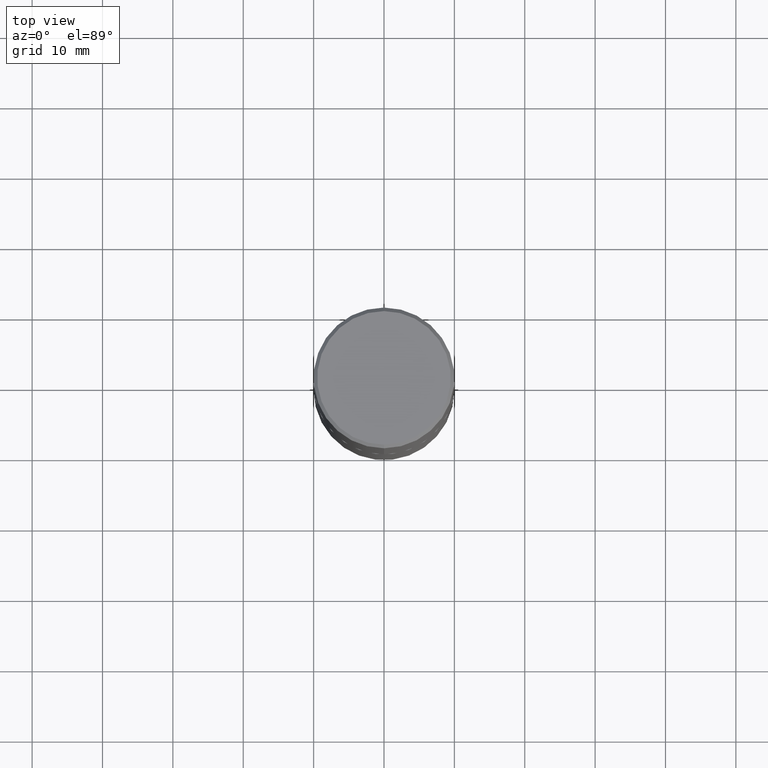
[diagram: clean part render]
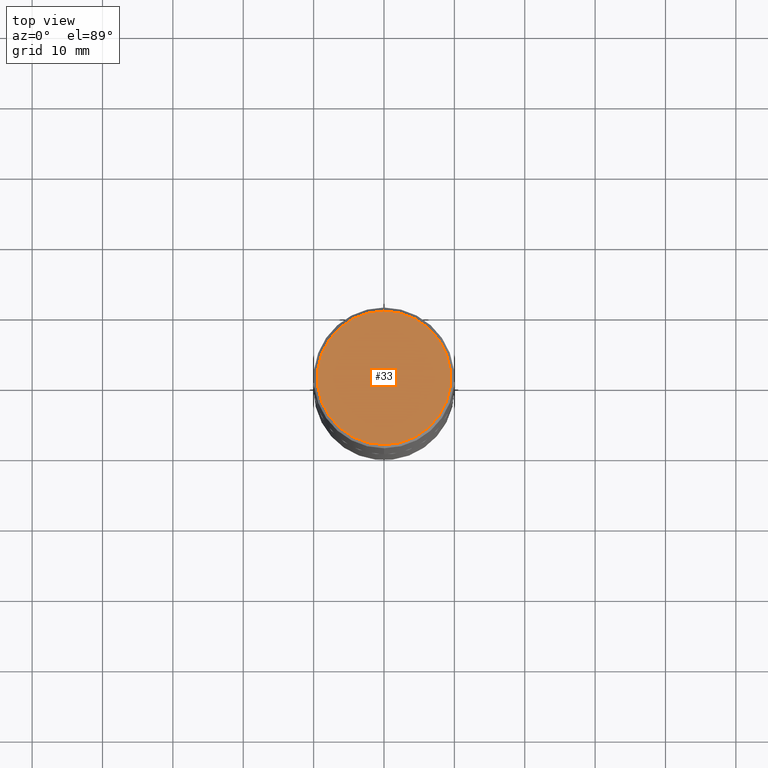
[diagram: same view with one face highlighted and labeled with its STEP entity id]
A machine part, top view. The second image highlights one B-rep face of the part: STEP entity #33.
In plain terms, the highlighted planar face has unit normal (0, -0, -1).
Its self-contained STEP definition (entity closure, byte-faithful):
#2 = AXIS2_PLACEMENT_3D ( 'NONE', #82, #15, #71 ) ;
#7 = DIRECTION ( 'NONE',  ( 2.447902336346030930E-29, -3.487996385144809360E-15, -1.000000000000000000 ) ) ;
#15 = DIRECTION ( 'NONE',  ( -2.447902336346030930E-29, 3.487996385144809755E-15, 1.000000000000000000 ) ) ;
#33 = ADVANCED_FACE ( 'NONE', ( #149 ), #262, .F. ) ;
#36 = VERTEX_POINT ( 'NONE', #197 ) ;
#57 = DIRECTION ( 'NONE',  ( -6.982962677686265133E-15, -1.000000000000000000, 3.487996385144809755E-15 ) ) ;
#71 = DIRECTION ( 'NONE',  ( -6.982962677686265133E-15, -1.000000000000000000, 3.487996385144809755E-15 ) ) ;
#76 = ORIENTED_EDGE ( 'NONE', *, *, #244, .T. ) ;
#81 = AXIS2_PLACEMENT_3D ( 'NONE', #327, #7, #103 ) ;
#82 = CARTESIAN_POINT ( 'NONE',  ( -5.506038201652776757E-45, 7.845509626213831500E-31, 2.249288347782537153E-16 ) ) ;
#83 = EDGE_CURVE ( 'NONE', #36, #164, #372, .T. ) ;
#103 = DIRECTION ( 'NONE',  ( 6.982962677686265922E-15, 1.000000000000000000, -3.487996385144809360E-15 ) ) ;
#149 = FACE_OUTER_BOUND ( 'NONE', #350, .T. ) ;
#164 = VERTEX_POINT ( 'NONE', #338 ) ;
#197 = CARTESIAN_POINT ( 'NONE',  ( -2.632373081744936315E-15, -0.3736999999999999211, 1.528393083906868747E-15 ) ) ;
#206 = AXIS2_PLACEMENT_3D ( 'NONE', #392, #309, #57 ) ;
#244 = EDGE_CURVE ( 'NONE', #164, #36, #266, .T. ) ;
#262 = PLANE ( 'NONE',  #81 ) ;
#266 = CIRCLE ( 'NONE', #206, 0.3736999999999999211 ) ;
#309 = DIRECTION ( 'NONE',  ( -2.447902336346030930E-29, 3.487996385144809755E-15, 1.000000000000000000 ) ) ;
#327 = CARTESIAN_POINT ( 'NONE',  ( 2.609533152651356620E-15, 0.3736999999999999211, -1.190999831739488445E-15 ) ) ;
#338 = CARTESIAN_POINT ( 'NONE',  ( 2.679362779428220707E-15, 0.3736999999999999211, -1.078535414350361218E-15 ) ) ;
#350 = EDGE_LOOP ( 'NONE', ( #76, #385 ) ) ;
#372 = CIRCLE ( 'NONE', #2, 0.3736999999999999211 ) ;
#385 = ORIENTED_EDGE ( 'NONE', *, *, #83, .T. ) ;
#392 = CARTESIAN_POINT ( 'NONE',  ( -5.506038201652776757E-45, 7.845509626213831500E-31, 2.249288347782537153E-16 ) ) ;